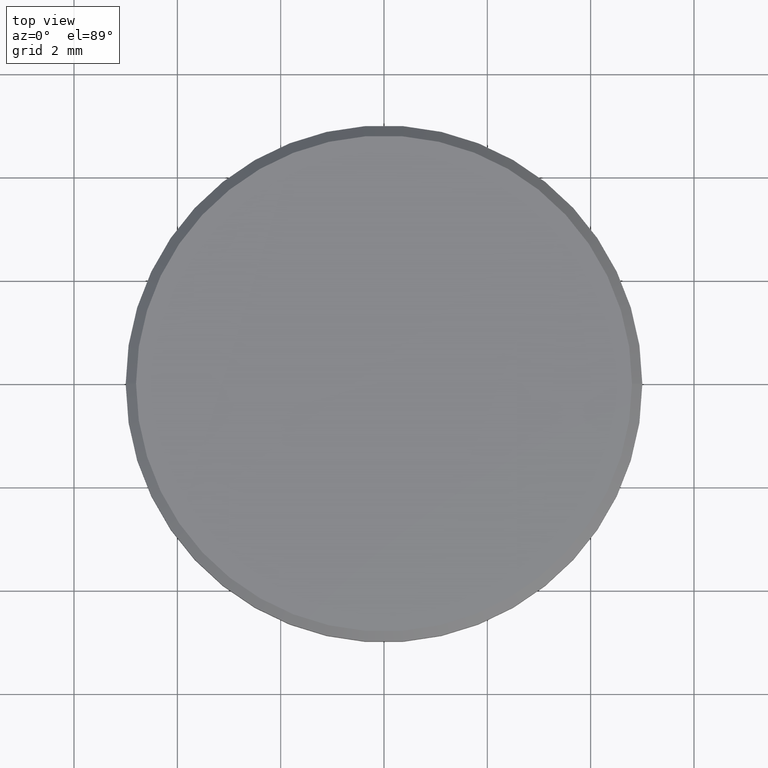
[diagram: clean part render]
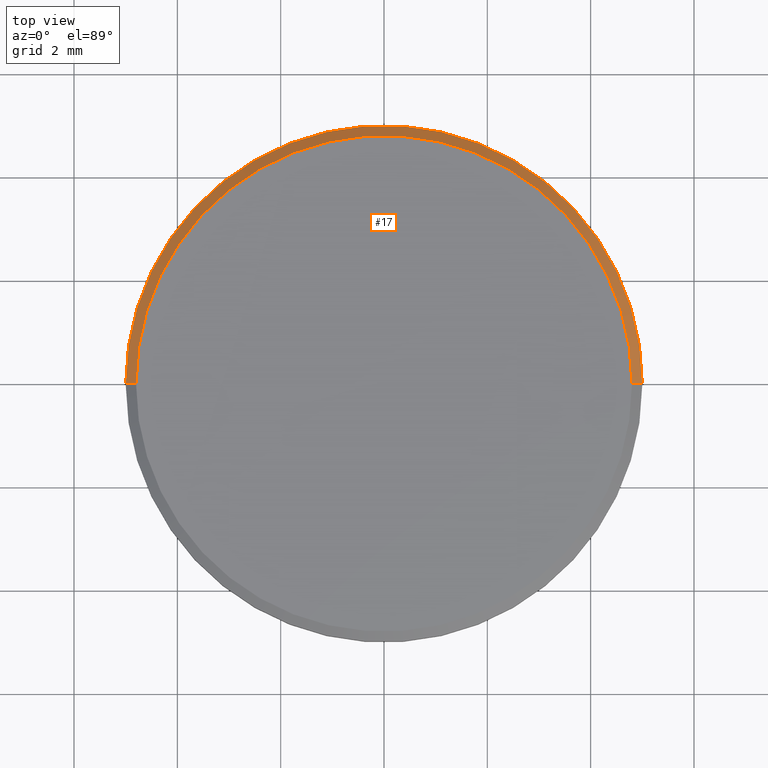
[diagram: same view with one face highlighted and labeled with its STEP entity id]
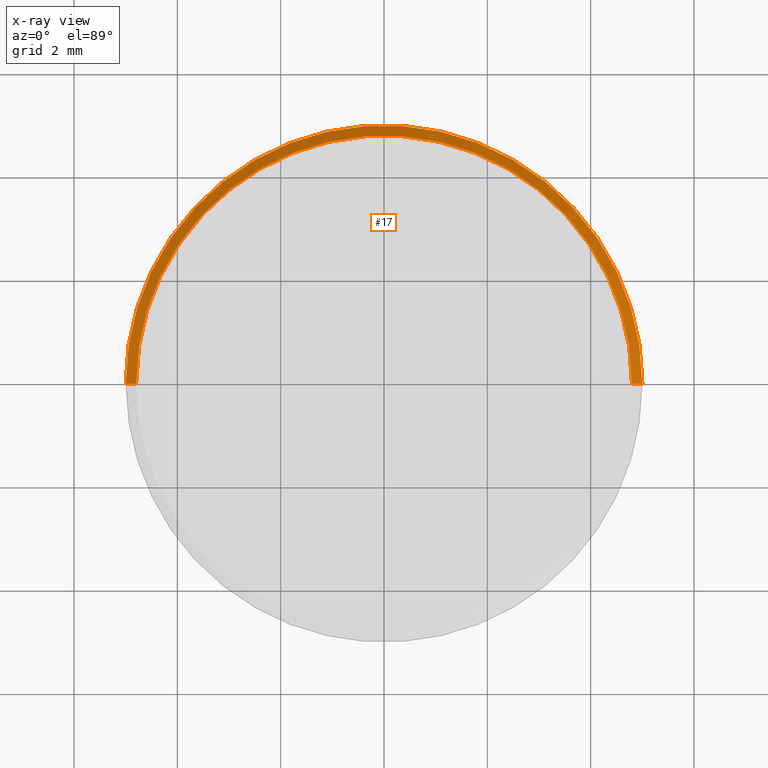
[diagram: x-ray of the same camera — body ghosted, the highlighted face saturated]
A machine part, top view. The second image highlights one B-rep face of the part: STEP entity #17.
The next image is the same camera in x-ray: the body ghosted, the highlighted face saturated — about 0% of this face is hidden behind the body in this view.
In plain terms, the highlighted conical surface has half-angle 45 deg.
Its self-contained STEP definition (entity closure, byte-faithful):
#13 = LINE ( 'NONE', #78, #231 ) ;
#17 = ADVANCED_FACE ( 'NONE', ( #190 ), #197, .T. ) ;
#22 = EDGE_LOOP ( 'NONE', ( #118, #177, #149, #77 ) ) ;
#24 = VECTOR ( 'NONE', #91, 1000.000000000000114 ) ;
#26 = DIRECTION ( 'NONE',  ( 0.000000000000000000, 0.000000000000000000, -1.000000000000000000 ) ) ;
#46 = LINE ( 'NONE', #194, #24 ) ;
#53 = AXIS2_PLACEMENT_3D ( 'NONE', #55, #117, #191 ) ;
#54 = DIRECTION ( 'NONE',  ( -0.7071067811865460184, 0.000000000000000000, -0.7071067811865489050 ) ) ;
#55 = CARTESIAN_POINT ( 'NONE',  ( 0.000000000000000000, 0.000000000000000000, 1.000000000000000000 ) ) ;
#64 = CARTESIAN_POINT ( 'NONE',  ( 0.000000000000000000, 0.000000000000000000, 1.000000000000000000 ) ) ;
#66 = AXIS2_PLACEMENT_3D ( 'NONE', #140, #26, #179 ) ;
#67 = EDGE_CURVE ( 'NONE', #79, #173, #13, .T. ) ;
#77 = ORIENTED_EDGE ( 'NONE', *, *, #67, .F. ) ;
#78 = CARTESIAN_POINT ( 'NONE',  ( -4.800000000000002487, 0.000000000000000000, 1.000000000000000000 ) ) ;
#79 = VERTEX_POINT ( 'NONE', #136 ) ;
#82 = AXIS2_PLACEMENT_3D ( 'NONE', #64, #162, #145 ) ;
#91 = DIRECTION ( 'NONE',  ( 0.7071067811865460184, 8.659560562354913137E-17, -0.7071067811865489050 ) ) ;
#106 = EDGE_CURVE ( 'NONE', #178, #135, #46, .T. ) ;
#110 = EDGE_CURVE ( 'NONE', #178, #79, #167, .T. ) ;
#117 = DIRECTION ( 'NONE',  ( 0.000000000000000000, 0.000000000000000000, -1.000000000000000000 ) ) ;
#118 = ORIENTED_EDGE ( 'NONE', *, *, #110, .F. ) ;
#124 = CARTESIAN_POINT ( 'NONE',  ( -5.000000000000000000, 0.000000000000000000, 0.8000000000000012657 ) ) ;
#135 = VERTEX_POINT ( 'NONE', #160 ) ;
#136 = CARTESIAN_POINT ( 'NONE',  ( -4.800000000000002487, 0.000000000000000000, 1.000000000000000000 ) ) ;
#140 = CARTESIAN_POINT ( 'NONE',  ( 0.000000000000000000, 0.000000000000000000, 0.8000000000000012657 ) ) ;
#145 = DIRECTION ( 'NONE',  ( 1.000000000000000000, 0.000000000000000000, 0.000000000000000000 ) ) ;
#149 = ORIENTED_EDGE ( 'NONE', *, *, #210, .F. ) ;
#160 = CARTESIAN_POINT ( 'NONE',  ( 5.000000000000000000, 6.123233995736766282E-16, 0.8000000000000012657 ) ) ;
#162 = DIRECTION ( 'NONE',  ( 0.000000000000000000, 0.000000000000000000, 1.000000000000000000 ) ) ;
#163 = CARTESIAN_POINT ( 'NONE',  ( 4.800000000000002487, 6.000769315822031726E-16, 1.000000000000000000 ) ) ;
#167 = CIRCLE ( 'NONE', #82, 4.800000000000002487 ) ;
#173 = VERTEX_POINT ( 'NONE', #124 ) ;
#176 = CIRCLE ( 'NONE', #66, 5.000000000000000000 ) ;
#177 = ORIENTED_EDGE ( 'NONE', *, *, #106, .T. ) ;
#178 = VERTEX_POINT ( 'NONE', #163 ) ;
#179 = DIRECTION ( 'NONE',  ( 1.000000000000000000, 0.000000000000000000, 0.000000000000000000 ) ) ;
#190 = FACE_OUTER_BOUND ( 'NONE', #22, .T. ) ;
#191 = DIRECTION ( 'NONE',  ( -1.000000000000000000, 0.000000000000000000, 0.000000000000000000 ) ) ;
#194 = CARTESIAN_POINT ( 'NONE',  ( 4.800000000000002487, 5.878304635907297169E-16, 1.000000000000000000 ) ) ;
#197 = CONICAL_SURFACE ( 'NONE', #53, 4.800000000000002487, 0.7853981633974461696 ) ;
#210 = EDGE_CURVE ( 'NONE', #173, #135, #176, .T. ) ;
#231 = VECTOR ( 'NONE', #54, 1000.000000000000114 ) ;